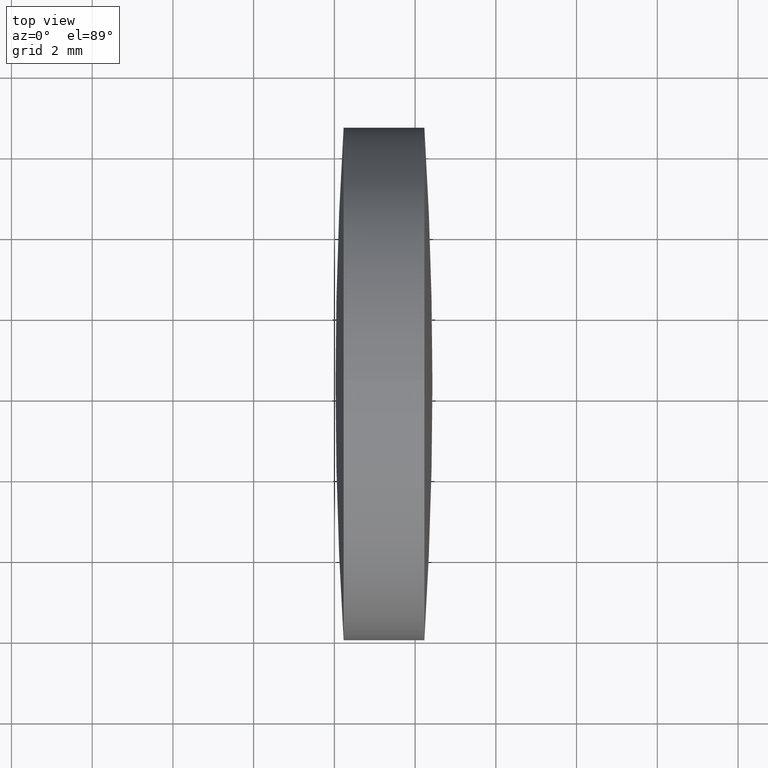
[diagram: clean part render]
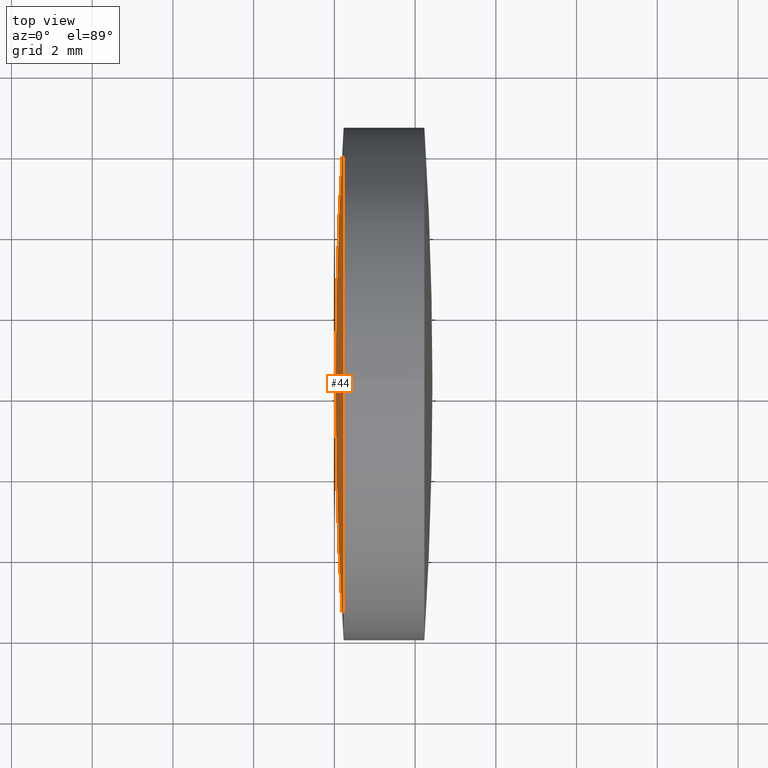
[diagram: same view with one face highlighted and labeled with its STEP entity id]
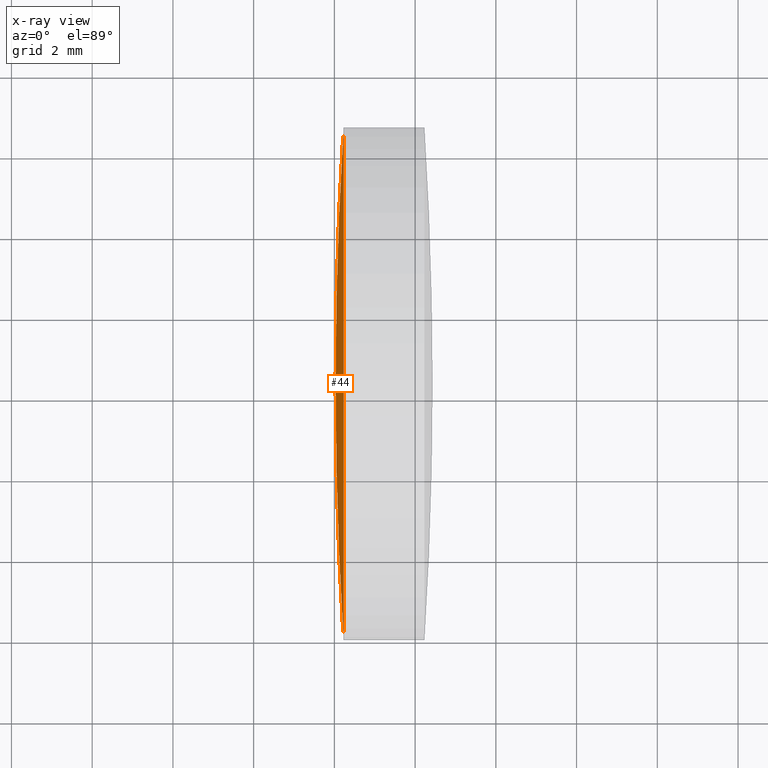
[diagram: x-ray of the same camera — body ghosted, the highlighted face saturated]
A machine part, top view. The second image highlights one B-rep face of the part: STEP entity #44.
The next image is the same camera in x-ray: the body ghosted, the highlighted face saturated — about 0% of this face is hidden behind the body in this view.
In plain terms, the highlighted spherical surface has radius 100.93 mm.
Its self-contained STEP definition (entity closure, byte-faithful):
#14 = VERTEX_POINT ( 'NONE', #288 ) ;
#16 = CARTESIAN_POINT ( 'NONE',  ( 42.22906260161698100, 24.30805651159239000, 6.349999999999997900 ) ) ;
#24 = DIRECTION ( 'NONE',  ( -1.000000000000000000, -0.0000000000000000000, -0.0000000000000000000 ) ) ;
#28 = FACE_OUTER_BOUND ( 'NONE', #315, .T. ) ;
#39 = EDGE_CURVE ( 'NONE', #140, #50, #97, .T. ) ;
#44 = ADVANCED_FACE ( 'NONE', ( #28 ), #64, .T. ) ;
#48 = EDGE_CURVE ( 'NONE', #14, #333, #330, .T. ) ;
#49 = DIRECTION ( 'NONE',  ( -1.000000000000000000, -0.0000000000000000000, -0.0000000000000000000 ) ) ;
#50 = VERTEX_POINT ( 'NONE', #16 ) ;
#52 = CARTESIAN_POINT ( 'NONE',  ( 42.22906260161698100, 24.30805651159239000, 0.0000000000000000000 ) ) ;
#60 = EDGE_CURVE ( 'NONE', #140, #333, #198, .T. ) ;
#64 = SPHERICAL_SURFACE ( 'NONE', #230, 100.9302094054652900 ) ;
#69 = CIRCLE ( 'NONE', #196, 6.349999999999997900 ) ;
#71 = CARTESIAN_POINT ( 'NONE',  ( 42.22906260161698800, 17.95805651159242400, -7.776507174585767100E-016 ) ) ;
#94 = CARTESIAN_POINT ( 'NONE',  ( 142.9593195785108400, 24.30805651159248600, 0.0000000000000000000 ) ) ;
#97 = CIRCLE ( 'NONE', #154, 6.349999999999997900 ) ;
#98 = DIRECTION ( 'NONE',  ( -0.0000000000000000000, 0.0000000000000000000, 1.000000000000000000 ) ) ;
#115 = EDGE_CURVE ( 'NONE', #50, #14, #69, .T. ) ;
#125 = DIRECTION ( 'NONE',  ( 0.0000000000000000000, 1.224646799147353200E-016, -1.000000000000000000 ) ) ;
#130 = CARTESIAN_POINT ( 'NONE',  ( 42.02911017304555900, 24.30805651159249300, 0.0000000000000000000 ) ) ;
#140 = VERTEX_POINT ( 'NONE', #71 ) ;
#149 = ORIENTED_EDGE ( 'NONE', *, *, #48, .T. ) ;
#153 = DIRECTION ( 'NONE',  ( 1.000000000000000000, 0.0000000000000000000, 0.0000000000000000000 ) ) ;
#154 = AXIS2_PLACEMENT_3D ( 'NONE', #52, #49, #312 ) ;
#159 = ORIENTED_EDGE ( 'NONE', *, *, #115, .T. ) ;
#164 = ORIENTED_EDGE ( 'NONE', *, *, #60, .F. ) ;
#196 = AXIS2_PLACEMENT_3D ( 'NONE', #268, #24, #316 ) ;
#198 = CIRCLE ( 'NONE', #226, 100.9302094054652900 ) ;
#215 = CARTESIAN_POINT ( 'NONE',  ( 142.9593195785108400, 24.30805651159248600, 0.0000000000000000000 ) ) ;
#221 = DIRECTION ( 'NONE',  ( 0.0000000000000000000, 1.000000000000000000, 0.0000000000000000000 ) ) ;
#226 = AXIS2_PLACEMENT_3D ( 'NONE', #94, #125, #337 ) ;
#230 = AXIS2_PLACEMENT_3D ( 'NONE', #215, #240, #221 ) ;
#240 = DIRECTION ( 'NONE',  ( -0.0000000000000000000, 0.0000000000000000000, -1.000000000000000000 ) ) ;
#266 = CARTESIAN_POINT ( 'NONE',  ( 142.9593195785108400, 24.30805651159248600, 0.0000000000000000000 ) ) ;
#268 = CARTESIAN_POINT ( 'NONE',  ( 42.22906260161698100, 24.30805651159239000, 0.0000000000000000000 ) ) ;
#284 = ORIENTED_EDGE ( 'NONE', *, *, #39, .T. ) ;
#285 = AXIS2_PLACEMENT_3D ( 'NONE', #266, #98, #153 ) ;
#288 = CARTESIAN_POINT ( 'NONE',  ( 42.22906260161698800, 30.65805651159245200, 0.0000000000000000000 ) ) ;
#312 = DIRECTION ( 'NONE',  ( 0.0000000000000000000, 0.0000000000000000000, 1.000000000000000000 ) ) ;
#315 = EDGE_LOOP ( 'NONE', ( #164, #284, #159, #149 ) ) ;
#316 = DIRECTION ( 'NONE',  ( 0.0000000000000000000, 0.0000000000000000000, 1.000000000000000000 ) ) ;
#330 = CIRCLE ( 'NONE', #285, 100.9302094054652900 ) ;
#333 = VERTEX_POINT ( 'NONE', #130 ) ;
#337 = DIRECTION ( 'NONE',  ( 0.0000000000000000000, 1.000000000000000000, 1.224646799147353200E-016 ) ) ;